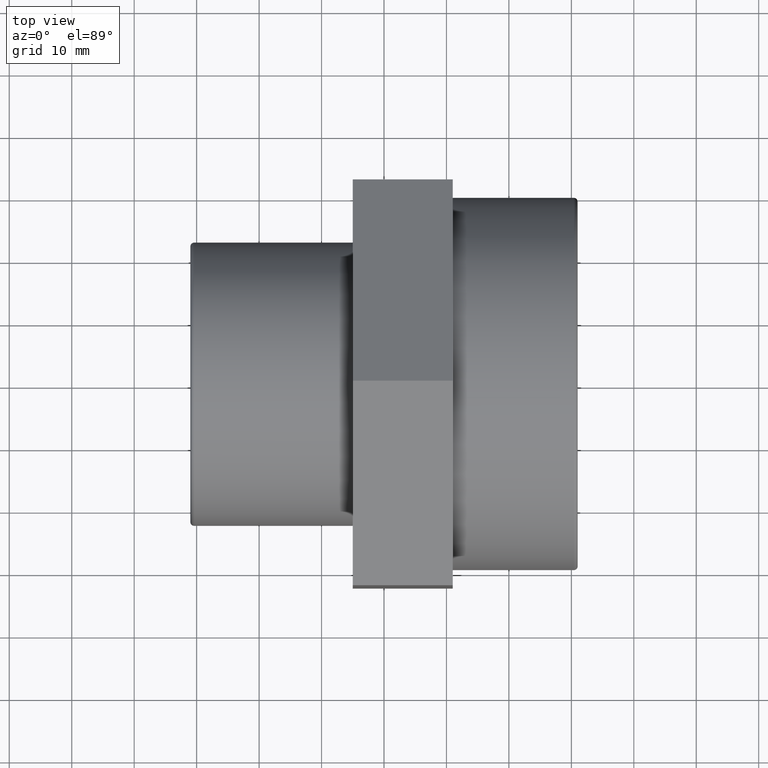
[diagram: clean part render]
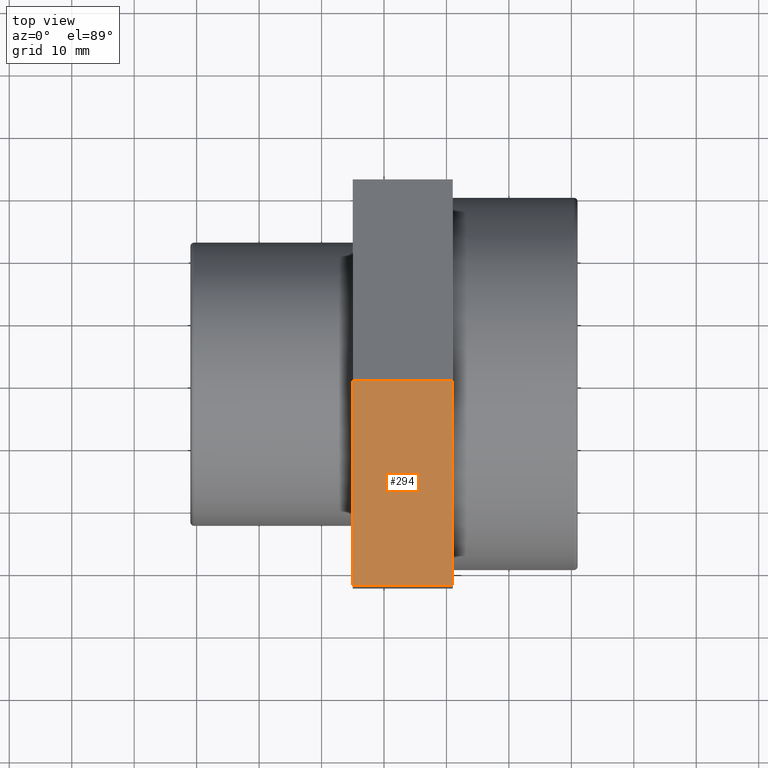
[diagram: same view with one face highlighted and labeled with its STEP entity id]
A machine part, top view. The second image highlights one B-rep face of the part: STEP entity #294.
In plain terms, the highlighted planar face has unit normal (0, -0.5026, 0.8645).
Its self-contained STEP definition (entity closure, byte-faithful):
#18=LINE('',#471,#36);
#26=LINE('',#489,#44);
#29=LINE('',#494,#47);
#30=LINE('',#495,#48);
#36=VECTOR('',#389,16.);
#44=VECTOR('',#403,16.);
#47=VECTOR('',#408,37.5277674973257);
#48=VECTOR('',#409,37.5277674973257);
#62=PLANE('',#329);
#97=FACE_OUTER_BOUND('',#128,.T.);
#128=EDGE_LOOP('',(#248,#249,#250,#251));
#166=VERTEX_POINT('',#464);
#169=VERTEX_POINT('',#469);
#175=VERTEX_POINT('',#486);
#176=VERTEX_POINT('',#488);
#195=EDGE_CURVE('',#169,#166,#18,.T.);
#203=EDGE_CURVE('',#176,#175,#26,.T.);
#206=EDGE_CURVE('',#175,#166,#29,.T.);
#207=EDGE_CURVE('',#169,#176,#30,.T.);
#248=ORIENTED_EDGE('',*,*,#206,.T.);
#249=ORIENTED_EDGE('',*,*,#195,.F.);
#250=ORIENTED_EDGE('',*,*,#207,.T.);
#251=ORIENTED_EDGE('',*,*,#203,.T.);
#294=ADVANCED_FACE('',(#97),#62,.T.);
#329=AXIS2_PLACEMENT_3D('',#493,#406,#407);
#389=DIRECTION('',(-1.,-1.85037170770858E-16,0.));
#403=DIRECTION('',(-1.,-1.85037170770858E-16,0.));
#406=DIRECTION('center_axis',(9.29930274188911E-17,-0.50256403635813,0.864539987137336));
#407=DIRECTION('ref_axis',(-1.77635683940025E-16,0.864539987137336,0.50256403635813));
#408=DIRECTION('',(1.58813419197395E-16,-0.864539987137336,-0.50256403635813));
#409=DIRECTION('',(-1.58813419197395E-16,0.864539987137336,0.50256403635813));
#464=CARTESIAN_POINT('',(-4.99999999999999,-32.5554589963547,18.6674964274807));
#469=CARTESIAN_POINT('',(11.,-32.5554589963546,18.6674964274807));
#471=CARTESIAN_POINT('',(11.,-32.5554589963546,18.6674964274807));
#486=CARTESIAN_POINT('',(-4.99999999999999,-0.11120336692378,37.5276027364461));
#488=CARTESIAN_POINT('',(11.,-0.111203366923777,37.5276027364461));
#489=CARTESIAN_POINT('',(11.,-0.111203366923777,37.5276027364461));
#493=CARTESIAN_POINT('Origin',(11.,-32.5554589963546,18.6674964274807));
#494=CARTESIAN_POINT('',(-4.99999999999999,-24.4443950889969,23.3825230047221));
#495=CARTESIAN_POINT('',(11.,-32.5554589963546,18.6674964274807));